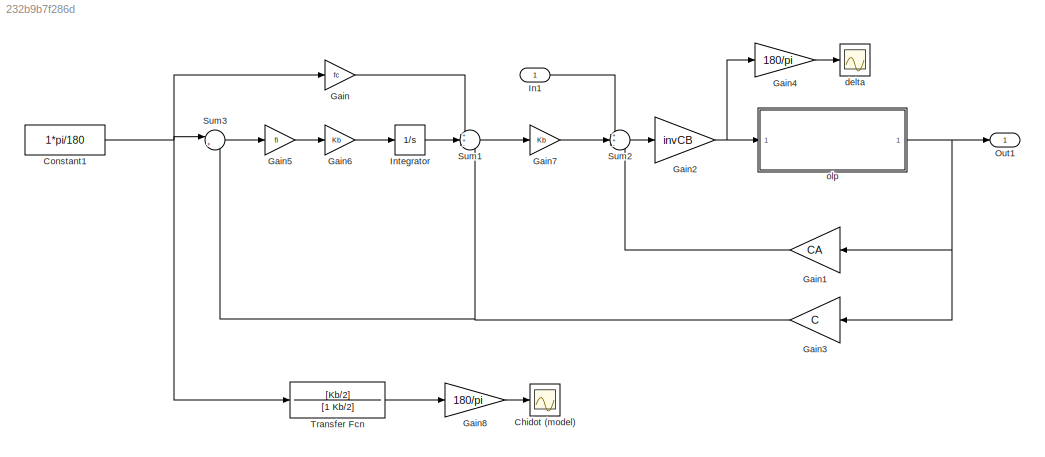
MODEL slx_232b9b7f286d
KIND model
CONFIG AbsTol = auto
CONFIG EnableMultiTasking = off
CONFIG FixedStep = 0.001
CONFIG MaxStep = auto
CONFIG MinStep = auto
CONFIG RelTol = 1e-3
CONFIG SampleTimeConstraint = Unconstrained
CONFIG Solver = ode3
CONFIG SolverName = ode3
CONFIG StartTime = 0.0
CONFIG StopTime = 5
BLOCK [Scope] Chidot (model)
  Floating = off
  NumInputPorts = 1
  Ports = [1]
  ScopeSpecificationString = Simulink.scopes.TimeScopeBlockCfg('CurrentConfiguration', extmgr.ConfigurationSet(extmgr.Configuration('Core','General UI',true),extmgr.Configuration('Core','Source UI',true),extmgr.Configuration('Sources','WiredSimulink',true,'DataLoggingVariableName','ScopeData1'),extmgr.Configuration('Visuals','Time Domain',true,'SerializedDisplays',{struct('MinYLimReal','-0.12499','MaxYLimReal','1.12495','YLab...<+1394ch>
BLOCK [Constant] Constant1
  Value = 1*pi/180
BLOCK [Gain] Gain
  Gain = fc
  OutDataTypeStr = Inherit: Inherit via internal rule
  ParamDataTypeStr = Inherit: Inherit via internal rule
  SaturateOnIntegerOverflow = off
BLOCK [Gain] Gain1
  Gain = CA
  Multiplication = Matrix(K*u)
  OutDataTypeStr = Inherit: Inherit via internal rule
  ParamDataTypeStr = Inherit: Inherit via internal rule
  SaturateOnIntegerOverflow = off
BLOCK [Gain] Gain2
  Gain = invCB
  Multiplication = Matrix(K*u)
  OutDataTypeStr = Inherit: Inherit via internal rule
  ParamDataTypeStr = Inherit: Inherit via internal rule
  SaturateOnIntegerOverflow = off
BLOCK [Gain] Gain3
  Gain = C
  Multiplication = Matrix(K*u)
  OutDataTypeStr = Inherit: Inherit via internal rule
  ParamDataTypeStr = Inherit: Inherit via internal rule
  SaturateOnIntegerOverflow = off
BLOCK [Gain] Gain4
  Gain = 180/pi
  Multiplication = Matrix(K*u)
  OutDataTypeStr = Inherit: Inherit via internal rule
  ParamDataTypeStr = Inherit: Inherit via internal rule
  SaturateOnIntegerOverflow = off
BLOCK [Gain] Gain5
  Gain = fi
  OutDataTypeStr = Inherit: Inherit via internal rule
  ParamDataTypeStr = Inherit: Inherit via internal rule
  SaturateOnIntegerOverflow = off
BLOCK [Gain] Gain6
  Gain = Kb
  OutDataTypeStr = Inherit: Inherit via internal rule
  ParamDataTypeStr = Inherit: Inherit via internal rule
  SaturateOnIntegerOverflow = off
BLOCK [Gain] Gain7
  Gain = Kb
  OutDataTypeStr = Inherit: Inherit via internal rule
  ParamDataTypeStr = Inherit: Inherit via internal rule
  SaturateOnIntegerOverflow = off
BLOCK [Gain] Gain8
  Gain = 180/pi
  Multiplication = Matrix(K*u)
  OutDataTypeStr = Inherit: Inherit via internal rule
  ParamDataTypeStr = Inherit: Inherit via internal rule
  SaturateOnIntegerOverflow = off
BLOCK [Inport] In1
  IconDisplay = Port number
BLOCK [Integrator] Integrator
  Ports = [1, 1]
BLOCK [Outport] Out1
  IconDisplay = Port number
BLOCK [Sum] Sum1
  IconShape = round
  InputSameDT = off
  Inputs = ++-
  OutDataTypeStr = Inherit: Inherit via internal rule
  Ports = [3, 1]
  SaturateOnIntegerOverflow = off
BLOCK [Sum] Sum2
  IconShape = round
  InputSameDT = off
  Inputs = ++-
  OutDataTypeStr = Inherit: Inherit via internal rule
  Ports = [3, 1]
  SaturateOnIntegerOverflow = off
BLOCK [Sum] Sum3
  IconShape = round
  InputSameDT = off
  Inputs = |+-
  OutDataTypeStr = Inherit: Inherit via internal rule
  Ports = [2, 1]
  SaturateOnIntegerOverflow = off
BLOCK [TransferFcn] Transfer Fcn
  Denominator = [1 Kb/2]
  Numerator = [Kb/2]
BLOCK [Scope] delta
  Floating = off
  NumInputPorts = 1
  Ports = [1]
  ScopeSpecificationString = Simulink.scopes.TimeScopeBlockCfg('CurrentConfiguration', extmgr.ConfigurationSet(extmgr.Configuration('Core','General UI',true),extmgr.Configuration('Core','Source UI',true),extmgr.Configuration('Sources','WiredSimulink',true,'DataLoggingVariableName','ScopeData3'),extmgr.Configuration('Visuals','Time Domain',true,'SerializedDisplays',{struct('MinYLimReal','-0.01468','MaxYLimReal','0.04827','YLab...<+1393ch>
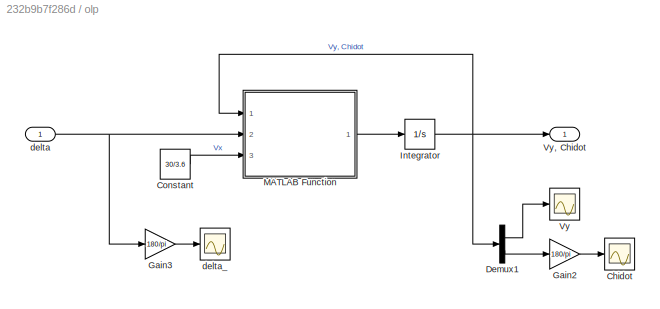
BLOCK [SubSystem] olp
  Ports = [1, 1]
  RequestExecContextInheritance = off
BLOCK [Scope] olp/Chidot
  Floating = off
  NumInputPorts = 1
  Ports = [1]
  ScopeSpecificationString = Simulink.scopes.TimeScopeBlockCfg('CurrentConfiguration', extmgr.ConfigurationSet(extmgr.Configuration('Core','General UI',true),extmgr.Configuration('Core','Source UI',true),extmgr.Configuration('Sources','WiredSimulink',true,'DataLoggingVariableName','ScopeData4'),extmgr.Configuration('Visuals','Time Domain',true,'SerializedDisplays',{struct('MinYLimReal','-0.125','MaxYLimReal','1.125','YLabelRe...<+1401ch>
BLOCK [Constant] olp/Constant
  Value = 30/3.6
BLOCK [Demux] olp/Demux1
  DisplayOption = bar
  Outputs = 2
  Ports = [1, 2]
BLOCK [Gain] olp/Gain2
  Gain = 180/pi
  OutDataTypeStr = Inherit: Inherit via internal rule
  ParamDataTypeStr = Inherit: Inherit via internal rule
  SaturateOnIntegerOverflow = off
BLOCK [Gain] olp/Gain3
  Gain = 180/pi
  OutDataTypeStr = Inherit: Inherit via internal rule
  ParamDataTypeStr = Inherit: Inherit via internal rule
  SaturateOnIntegerOverflow = off
BLOCK [Integrator] olp/Integrator
  InitialCondition = [0;0]
  Ports = [1, 1]
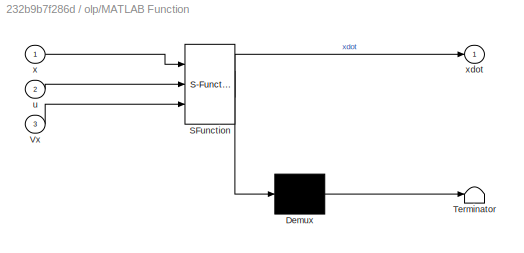
BLOCK [SubSystem] olp/MATLAB Function
  ErrorFcn = Stateflow.Translate.translate
  PermitHierarchicalResolution = ExplicitOnly
  Ports = [3, 1]
  RequestExecContextInheritance = off
  SFBlockType = MATLAB Function
  TreatAsAtomicUnit = on
BLOCK [Demux] olp/MATLAB Function/ Demux 
  Outputs = 1
  Ports = [1, 1]
BLOCK [S-Function] olp/MATLAB Function/ SFunction 
  EnableBusSupport = on
  FunctionName = sf_sfun
  PortCounts = [3 2]
  Ports = [3, 2]
  SFcnIsStateOwnerBlock = off
  SFunctionDeploymentMode = off
  Tag = Stateflow S-Function sim_linear_control3 2
BLOCK [Terminator] olp/MATLAB Function/ Terminator 
BLOCK [Inport] olp/MATLAB Function/Vx
  IconDisplay = Port number
  Port = 3
BLOCK [Inport] olp/MATLAB Function/u
  IconDisplay = Port number
  Port = 2
BLOCK [Inport] olp/MATLAB Function/x
  IconDisplay = Port number
BLOCK [Outport] olp/MATLAB Function/xdot
  IconDisplay = Port number
BLOCK [Scope] olp/Vy
  Floating = off
  NumInputPorts = 1
  Ports = [1]
  ScopeSpecificationString = Simulink.scopes.TimeScopeBlockCfg('CurrentConfiguration', extmgr.ConfigurationSet(extmgr.Configuration('Core','General UI',true),extmgr.Configuration('Core','Source UI',true),extmgr.Configuration('Sources','WiredSimulink',true,'DataLoggingVariableName','ScopeData3'),extmgr.Configuration('Visuals','Time Domain',true,'SerializedDisplays',{struct('MinYLimReal','-0.05888','MaxYLimReal','0.079','YLabel...<+1408ch>
BLOCK [Outport] olp/Vy, Chidot
  IconDisplay = Port number
BLOCK [Inport] olp/delta
  IconDisplay = Port number
BLOCK [Scope] olp/delta_
  Floating = off
  NumInputPorts = 1
  Ports = [1]
  ScopeSpecificationString = Simulink.scopes.TimeScopeBlockCfg('CurrentConfiguration', extmgr.ConfigurationSet(extmgr.Configuration('Core','General UI',true),extmgr.Configuration('Core','Source UI',true),extmgr.Configuration('Sources','WiredSimulink',true,'DataLoggingVariableName','ScopeData5'),extmgr.Configuration('Visuals','Time Domain',true,'SerializedDisplays',{struct('MinYLimReal','20.00000','MaxYLimReal','40.00000','YLa...<+1399ch>
NET Constant1:1 -> Gain:1, Sum3:1, Transfer Fcn:1
LINE Gain1:1 -> Sum2:3
NET Gain2:1 -> Gain4:1, olp:1
NET Gain3:1 -> Sum1:3, Sum3:2
LINE Gain4:1 -> delta:1
LINE Gain5:1 -> Gain6:1
LINE Gain6:1 -> Integrator:1
LINE Gain7:1 -> Sum2:2
LINE Gain8:1 -> Chidot (model):1
LINE Gain:1 -> Sum1:1
LINE In1:1 -> Sum2:1
LINE Integrator:1 -> Sum1:2
LINE Sum1:1 -> Gain7:1
LINE Sum2:1 -> Gain2:1
LINE Sum3:1 -> Gain5:1
LINE Transfer Fcn:1 -> Gain8:1
LINE olp/Constant:1 -> olp/MATLAB Function:3
LINE olp/Demux1:1 -> olp/Vy:1
LINE olp/Demux1:2 -> olp/Gain2:1
LINE olp/Gain2:1 -> olp/Chidot:1
LINE olp/Gain3:1 -> olp/delta_:1
NET olp/Integrator:1 -> olp/Demux1:1, olp/MATLAB Function:1, olp/Vy, Chidot:1
LINE olp/MATLAB Function:1 -> olp/Integrator:1
NET olp/delta:1 -> olp/Gain3:1, olp/MATLAB Function:2
NET olp:1 -> Gain1:1, Gain3:1, Out1:1
note: NET lines group one-source signal fan-out (src -> all destinations, sorted); 1:1 wires keep LINE
CHART olp/MATLAB Function states=1 transitions=1
  STATE_LABEL 'eML_blk_kernel()'
  STATE_LABEL 'SCRIPT:\nfunction xdot = dynamic_lin(x,u,Vx)\n\n% sports sedan\n\nm = 1724; % kg\nIz = 3400; % kg/m^2\na = 1.35; % m\nb = 1.15; % m\nCf = 12*1e4; % N/rad\nCr = 175*1e3; % N/rad\nmu = 0.5225;\n\n% x = [vy Chidot], u = delta\n\nA = [-(Cf+Cr)/m  -(a*Cf-b*Cr)/(m*Vx)-Vx; \n    -(a*Cf-b*Cr)/(Iz*Vx) -(a^2*Cf-b^2*Cr)/(Iz*Vx)];\n\nB = [Cf/m; a*Cf/Iz];\n\nxdot = A*x + B*u;\n'
